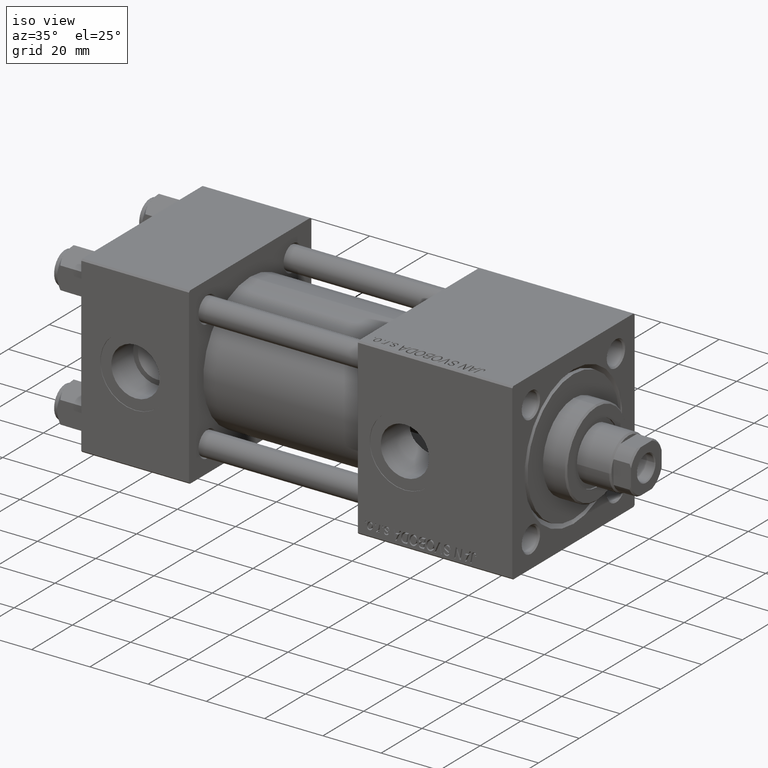
[diagram: clean part render]
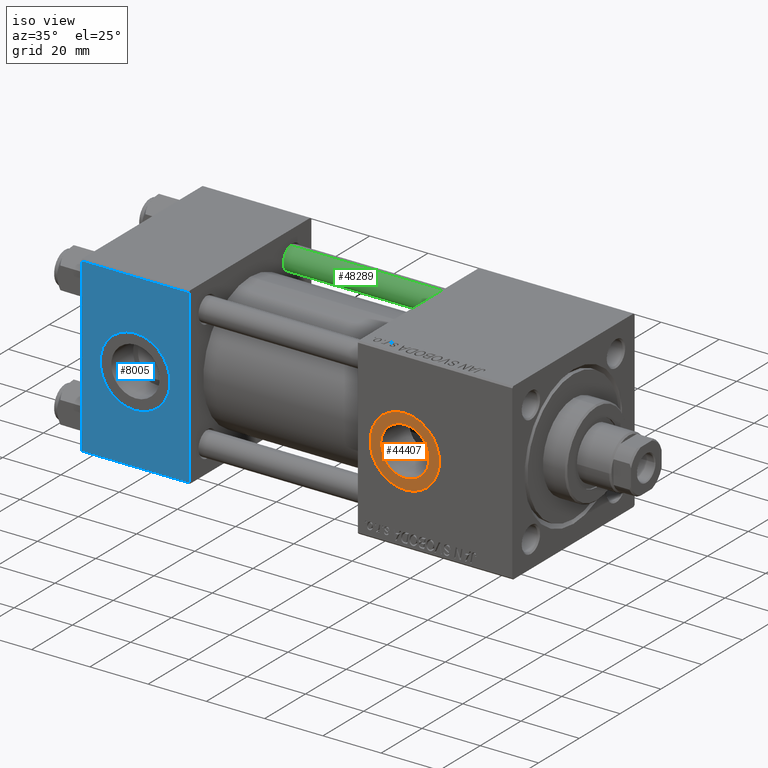
[diagram: same view with three faces highlighted in distinct colors, each labeled with its STEP entity id]
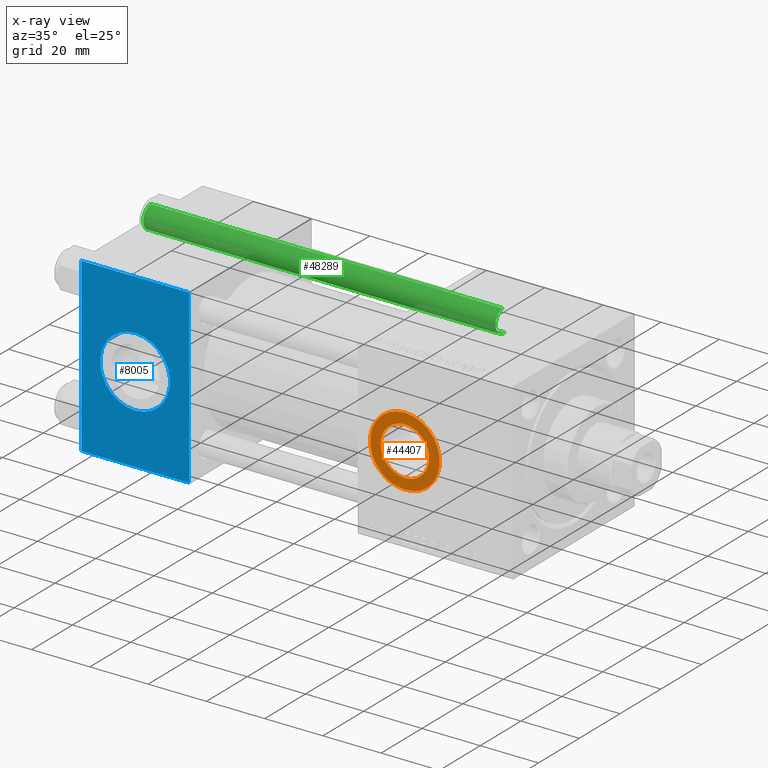
[diagram: x-ray of the same camera — body ghosted, the three highlighted faces saturated]
A machine part, iso view with three faces highlighted in distinct colors.
The next image is the same camera in x-ray (body ghosted, the three faces saturated) — at least one of them is partly hidden behind the body in this view.
Their STEP definitions:

[orange] entity #44407 — the highlighted planar face has unit normal (0, -1, -0).
#407 = CIRCLE ( 'NONE', #22396, 11.99999999999998934 ) ;
#1241 = EDGE_CURVE ( 'NONE', #21728, #38189, #407, .T. ) ;
#1438 = AXIS2_PLACEMENT_3D ( 'NONE', #8268, #19901, #35759 ) ;
#2468 = CARTESIAN_POINT ( 'NONE',  ( 111.0000000000000000, -29.80000000000000071, 8.329999999999998295 ) ) ;
#2627 = CARTESIAN_POINT ( 'NONE',  ( 111.0000000000000000, -29.80000000000000071, -11.99999999999998934 ) ) ;
#3034 = EDGE_LOOP ( 'NONE', ( #9060, #8708 ) ) ;
#6558 = EDGE_CURVE ( 'NONE', #16225, #51825, #48755, .T. ) ;
#8268 = CARTESIAN_POINT ( 'NONE',  ( 111.0000000000000000, -29.80000000000000071, 1.734723475976808635E-17 ) ) ;
#8708 = ORIENTED_EDGE ( 'NONE', *, *, #25541, .T. ) ;
#9060 = ORIENTED_EDGE ( 'NONE', *, *, #1241, .T. ) ;
#10365 = CARTESIAN_POINT ( 'NONE',  ( 111.0000000000000000, -29.80000000000000071, 1.734723475976807403E-17 ) ) ;
#10464 = ORIENTED_EDGE ( 'NONE', *, *, #43934, .F. ) ;
#11249 = CARTESIAN_POINT ( 'NONE',  ( 111.0000000000000000, -29.80000000000000071, 1.734723475976807403E-17 ) ) ;
#16225 = VERTEX_POINT ( 'NONE', #2468 ) ;
#16750 = CARTESIAN_POINT ( 'NONE',  ( 111.0000000000000000, -29.80000000000000071, -8.329999999999998295 ) ) ;
#19199 = DIRECTION ( 'NONE',  ( 0.000000000000000000, -1.000000000000000000, -8.673617379884036705E-17 ) ) ;
#19457 = DIRECTION ( 'NONE',  ( 0.000000000000000000, 8.673617379884036705E-17, -1.000000000000000000 ) ) ;
#19901 = DIRECTION ( 'NONE',  ( 0.000000000000000000, -1.000000000000000000, -8.673617379884036705E-17 ) ) ;
#21193 = CIRCLE ( 'NONE', #22052, 11.99999999999998934 ) ;
#21728 = VERTEX_POINT ( 'NONE', #2627 ) ;
#21760 = AXIS2_PLACEMENT_3D ( 'NONE', #11249, #19199, #19457 ) ;
#22052 = AXIS2_PLACEMENT_3D ( 'NONE', #10365, #26491, #30209 ) ;
#22396 = AXIS2_PLACEMENT_3D ( 'NONE', #32012, #39660, #52068 ) ;
#22793 = CARTESIAN_POINT ( 'NONE',  ( 111.0000000000000000, -29.80000000000000071, 1.734723475976808635E-17 ) ) ;
#24448 = EDGE_LOOP ( 'NONE', ( #10464, #33092 ) ) ;
#25541 = EDGE_CURVE ( 'NONE', #38189, #21728, #21193, .T. ) ;
#26228 = DIRECTION ( 'NONE',  ( 0.000000000000000000, 0.000000000000000000, -1.000000000000000000 ) ) ;
#26491 = DIRECTION ( 'NONE',  ( 0.000000000000000000, -1.000000000000000000, -8.673617379884036705E-17 ) ) ;
#30209 = DIRECTION ( 'NONE',  ( 0.000000000000000000, 0.000000000000000000, -1.000000000000000000 ) ) ;
#31615 = FACE_OUTER_BOUND ( 'NONE', #3034, .T. ) ;
#32012 = CARTESIAN_POINT ( 'NONE',  ( 111.0000000000000000, -29.80000000000000071, 1.734723475976807403E-17 ) ) ;
#33092 = ORIENTED_EDGE ( 'NONE', *, *, #6558, .F. ) ;
#34930 = DIRECTION ( 'NONE',  ( 0.000000000000000000, -1.000000000000000000, -8.673617379884036705E-17 ) ) ;
#35759 = DIRECTION ( 'NONE',  ( 0.000000000000000000, 0.000000000000000000, -1.000000000000000000 ) ) ;
#37879 = CARTESIAN_POINT ( 'NONE',  ( 111.0000000000000000, -29.80000000000000071, 11.99999999999998934 ) ) ;
#38189 = VERTEX_POINT ( 'NONE', #37879 ) ;
#39660 = DIRECTION ( 'NONE',  ( 0.000000000000000000, -1.000000000000000000, -8.673617379884036705E-17 ) ) ;
#40266 = CIRCLE ( 'NONE', #1438, 8.329999999999998295 ) ;
#43934 = EDGE_CURVE ( 'NONE', #51825, #16225, #40266, .T. ) ;
#44407 = ADVANCED_FACE ( 'NONE', ( #46942, #31615 ), #51683, .T. ) ;
#44538 = AXIS2_PLACEMENT_3D ( 'NONE', #22793, #34930, #26228 ) ;
#46942 = FACE_BOUND ( 'NONE', #24448, .T. ) ;
#48755 = CIRCLE ( 'NONE', #44538, 8.329999999999998295 ) ;
#51683 = PLANE ( 'NONE',  #21760 ) ;
#51825 = VERTEX_POINT ( 'NONE', #16750 ) ;
#52068 = DIRECTION ( 'NONE',  ( 0.000000000000000000, 0.000000000000000000, -1.000000000000000000 ) ) ;

[blue] entity #8005 — the highlighted planar face has unit normal (0, 1, 0).
#202 = CARTESIAN_POINT ( 'NONE',  ( 18.50000000000000000, -30.00000000000000000, -12.00000000000000178 ) ) ;
#1559 = DIRECTION ( 'NONE',  ( 0.000000000000000000, -1.000000000000000000, -8.673617379884036705E-17 ) ) ;
#1560 = EDGE_CURVE ( 'NONE', #47371, #7026, #19022, .T. ) ;
#2381 = VECTOR ( 'NONE', #6250, 1000.000000000000000 ) ;
#3599 = ORIENTED_EDGE ( 'NONE', *, *, #48168, .F. ) ;
#5217 = VERTEX_POINT ( 'NONE', #18328 ) ;
#6250 = DIRECTION ( 'NONE',  ( 1.000000000000000000, 0.000000000000000000, 0.000000000000000000 ) ) ;
#7026 = VERTEX_POINT ( 'NONE', #202 ) ;
#7818 = DIRECTION ( 'NONE',  ( 0.000000000000000000, 0.000000000000000000, -1.000000000000000000 ) ) ;
#7977 = FACE_OUTER_BOUND ( 'NONE', #45129, .T. ) ;
#8005 = ADVANCED_FACE ( 'NONE', ( #28326, #7977 ), #28867, .F. ) ;
#9516 = AXIS2_PLACEMENT_3D ( 'NONE', #10465, #37700, #42711 ) ;
#10075 = VERTEX_POINT ( 'NONE', #47907 ) ;
#10465 = CARTESIAN_POINT ( 'NONE',  ( 18.50000000000000000, -30.00000000000000000, 0.000000000000000000 ) ) ;
#10800 = AXIS2_PLACEMENT_3D ( 'NONE', #40482, #47886, #23852 ) ;
#11035 = DIRECTION ( 'NONE',  ( 0.000000000000000000, 0.000000000000000000, -1.000000000000000000 ) ) ;
#13430 = EDGE_CURVE ( 'NONE', #10075, #5217, #18279, .T. ) ;
#15869 = CARTESIAN_POINT ( 'NONE',  ( 37.00000000000000000, -30.00000000000000000, 29.99999999999999289 ) ) ;
#16450 = AXIS2_PLACEMENT_3D ( 'NONE', #21666, #1559, #7818 ) ;
#18279 = LINE ( 'NONE', #51571, #30886 ) ;
#18328 = CARTESIAN_POINT ( 'NONE',  ( 0.000000000000000000, -30.00000000000000000, 29.49999999999999289 ) ) ;
#18390 = EDGE_LOOP ( 'NONE', ( #26710, #28023 ) ) ;
#19022 = CIRCLE ( 'NONE', #16450, 12.00000000000000178 ) ;
#19209 = LINE ( 'NONE', #50137, #2381 ) ;
#19420 = EDGE_CURVE ( 'NONE', #5217, #43339, #23731, .T. ) ;
#19589 = LINE ( 'NONE', #15869, #31045 ) ;
#21666 = CARTESIAN_POINT ( 'NONE',  ( 18.50000000000000000, -30.00000000000000000, 0.000000000000000000 ) ) ;
#21840 = VERTEX_POINT ( 'NONE', #43330 ) ;
#23563 = DIRECTION ( 'NONE',  ( 0.000000000000000000, 0.000000000000000000, -1.000000000000000000 ) ) ;
#23731 = LINE ( 'NONE', #48022, #45486 ) ;
#23852 = DIRECTION ( 'NONE',  ( 0.000000000000000000, -0.000000000000000000, 1.000000000000000000 ) ) ;
#26710 = ORIENTED_EDGE ( 'NONE', *, *, #32905, .F. ) ;
#28023 = ORIENTED_EDGE ( 'NONE', *, *, #1560, .F. ) ;
#28326 = FACE_BOUND ( 'NONE', #18390, .T. ) ;
#28867 = PLANE ( 'NONE',  #10800 ) ;
#30729 = DIRECTION ( 'NONE',  ( -1.000000000000000000, 0.000000000000000000, 0.000000000000000000 ) ) ;
#30886 = VECTOR ( 'NONE', #30729, 1000.000000000000000 ) ;
#31045 = VECTOR ( 'NONE', #23563, 1000.000000000000000 ) ;
#32905 = EDGE_CURVE ( 'NONE', #7026, #47371, #38173, .T. ) ;
#36151 = ORIENTED_EDGE ( 'NONE', *, *, #13430, .T. ) ;
#37700 = DIRECTION ( 'NONE',  ( 0.000000000000000000, -1.000000000000000000, -8.673617379884036705E-17 ) ) ;
#38173 = CIRCLE ( 'NONE', #9516, 12.00000000000000178 ) ;
#38959 = ORIENTED_EDGE ( 'NONE', *, *, #19420, .T. ) ;
#40482 = CARTESIAN_POINT ( 'NONE',  ( 37.00000000000000000, -30.00000000000000000, 29.99999999999999289 ) ) ;
#42432 = ORIENTED_EDGE ( 'NONE', *, *, #46249, .T. ) ;
#42711 = DIRECTION ( 'NONE',  ( 0.000000000000000000, 0.000000000000000000, -1.000000000000000000 ) ) ;
#43330 = CARTESIAN_POINT ( 'NONE',  ( 37.00000000000000000, -30.00000000000000000, -29.50000000000001776 ) ) ;
#43339 = VERTEX_POINT ( 'NONE', #47534 ) ;
#44943 = CARTESIAN_POINT ( 'NONE',  ( 18.50000000000000000, -30.00000000000000000, 12.00000000000000178 ) ) ;
#45129 = EDGE_LOOP ( 'NONE', ( #38959, #42432, #3599, #36151 ) ) ;
#45486 = VECTOR ( 'NONE', #11035, 1000.000000000000000 ) ;
#46249 = EDGE_CURVE ( 'NONE', #43339, #21840, #19209, .T. ) ;
#47371 = VERTEX_POINT ( 'NONE', #44943 ) ;
#47534 = CARTESIAN_POINT ( 'NONE',  ( 0.000000000000000000, -30.00000000000000000, -29.50000000000001776 ) ) ;
#47886 = DIRECTION ( 'NONE',  ( -0.000000000000000000, 1.000000000000000000, 0.000000000000000000 ) ) ;
#47907 = CARTESIAN_POINT ( 'NONE',  ( 37.00000000000000000, -30.00000000000000000, 29.49999999999999289 ) ) ;
#48022 = CARTESIAN_POINT ( 'NONE',  ( 0.000000000000000000, -30.00000000000000000, 29.99999999999999289 ) ) ;
#48168 = EDGE_CURVE ( 'NONE', #10075, #21840, #19589, .T. ) ;
#50137 = CARTESIAN_POINT ( 'NONE',  ( 37.00000000000000000, -30.00000000000000000, -29.50000000000001776 ) ) ;
#51571 = CARTESIAN_POINT ( 'NONE',  ( 37.00000000000000000, -30.00000000000000000, 29.49999999999999289 ) ) ;

[green] entity #48289 — the highlighted cylindrical surface (edge-blend (fillet) strip) has radius 4 mm, axis along (-1, 0, 0).
#456 = LINE ( 'NONE', #44622, #27627 ) ;
#2070 = CARTESIAN_POINT ( 'NONE',  ( 0.000000000000000000, 0.000000000000000000, 122.0000000000000000 ) ) ;
#4886 = AXIS2_PLACEMENT_3D ( 'NONE', #39595, #7354, #15290 ) ;
#5997 = VERTEX_POINT ( 'NONE', #51679 ) ;
#6305 = CYLINDRICAL_SURFACE ( 'NONE', #47063, 4.000000000000000000 ) ;
#6845 = DIRECTION ( 'NONE',  ( -1.000000000000000000, 0.000000000000000000, 0.000000000000000000 ) ) ;
#7102 = EDGE_CURVE ( 'NONE', #5997, #7985, #456, .T. ) ;
#7158 = VERTEX_POINT ( 'NONE', #42661 ) ;
#7354 = DIRECTION ( 'NONE',  ( -0.000000000000000000, -0.000000000000000000, 1.000000000000000000 ) ) ;
#7985 = VERTEX_POINT ( 'NONE', #36260 ) ;
#8145 = DIRECTION ( 'NONE',  ( -0.000000000000000000, -0.000000000000000000, -1.000000000000000000 ) ) ;
#9216 = ORIENTED_EDGE ( 'NONE', *, *, #7102, .F. ) ;
#15108 = CIRCLE ( 'NONE', #4886, 4.000000000000000000 ) ;
#15290 = DIRECTION ( 'NONE',  ( 1.000000000000000000, 0.000000000000000000, 0.000000000000000000 ) ) ;
#18242 = ORIENTED_EDGE ( 'NONE', *, *, #35158, .T. ) ;
#18523 = VERTEX_POINT ( 'NONE', #50728 ) ;
#22435 = ORIENTED_EDGE ( 'NONE', *, *, #47580, .T. ) ;
#22755 = EDGE_CURVE ( 'NONE', #18523, #7158, #23258, .T. ) ;
#23258 = LINE ( 'NONE', #51762, #43896 ) ;
#23489 = DIRECTION ( 'NONE',  ( 1.000000000000000000, 0.000000000000000000, 0.000000000000000000 ) ) ;
#26670 = DIRECTION ( 'NONE',  ( -0.000000000000000000, -0.000000000000000000, -1.000000000000000000 ) ) ;
#27627 = VECTOR ( 'NONE', #8145, 1000.000000000000000 ) ;
#28150 = AXIS2_PLACEMENT_3D ( 'NONE', #47272, #39074, #23489 ) ;
#30686 = CIRCLE ( 'NONE', #28150, 4.000000000000000000 ) ;
#31698 = DIRECTION ( 'NONE',  ( -0.000000000000000000, -0.000000000000000000, -1.000000000000000000 ) ) ;
#32495 = EDGE_LOOP ( 'NONE', ( #9216, #18242, #43871, #22435 ) ) ;
#34606 = FACE_OUTER_BOUND ( 'NONE', #32495, .T. ) ;
#35158 = EDGE_CURVE ( 'NONE', #5997, #18523, #30686, .T. ) ;
#36260 = CARTESIAN_POINT ( 'NONE',  ( 4.000000000000000000, 4.898587196589411843E-16, 0.5000000000000559552 ) ) ;
#39074 = DIRECTION ( 'NONE',  ( 0.000000000000000000, 0.000000000000000000, -1.000000000000000000 ) ) ;
#39595 = CARTESIAN_POINT ( 'NONE',  ( 0.000000000000000000, 0.000000000000000000, 0.5000000000000559552 ) ) ;
#42661 = CARTESIAN_POINT ( 'NONE',  ( -4.000000000000000000, 0.000000000000000000, 0.5000000000000559552 ) ) ;
#43871 = ORIENTED_EDGE ( 'NONE', *, *, #22755, .T. ) ;
#43896 = VECTOR ( 'NONE', #31698, 1000.000000000000000 ) ;
#44622 = CARTESIAN_POINT ( 'NONE',  ( 4.000000000000000000, 4.898587196589411843E-16, 122.0000000000000000 ) ) ;
#47063 = AXIS2_PLACEMENT_3D ( 'NONE', #2070, #26670, #6845 ) ;
#47272 = CARTESIAN_POINT ( 'NONE',  ( 0.000000000000000000, 0.000000000000000000, 121.5000000000000426 ) ) ;
#47580 = EDGE_CURVE ( 'NONE', #7158, #7985, #15108, .T. ) ;
#48289 = ADVANCED_FACE ( 'NONE', ( #34606 ), #6305, .T. ) ;
#50728 = CARTESIAN_POINT ( 'NONE',  ( -4.000000000000000000, 0.000000000000000000, 121.5000000000000426 ) ) ;
#51679 = CARTESIAN_POINT ( 'NONE',  ( 4.000000000000000000, 4.898587196589411843E-16, 121.5000000000000426 ) ) ;
#51762 = CARTESIAN_POINT ( 'NONE',  ( -4.000000000000000000, 0.000000000000000000, 122.0000000000000000 ) ) ;